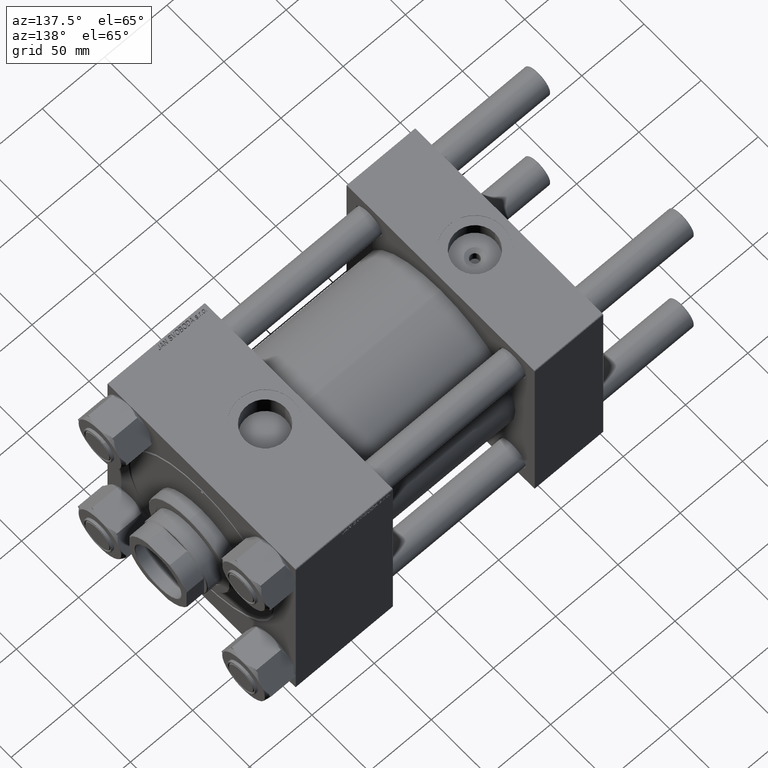
[diagram: clean part render]
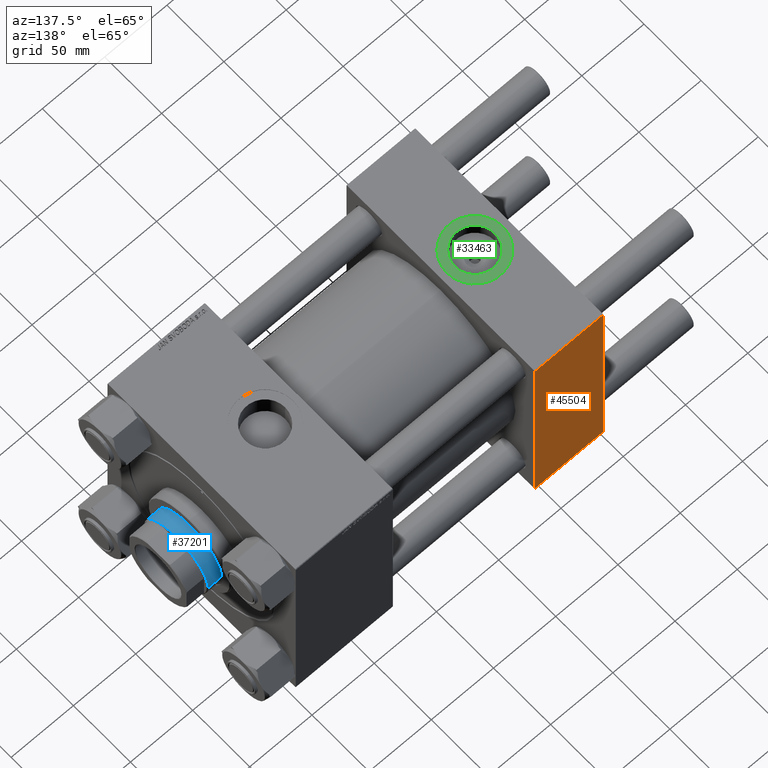
[diagram: same view with three faces highlighted in distinct colors, each labeled with its STEP entity id]
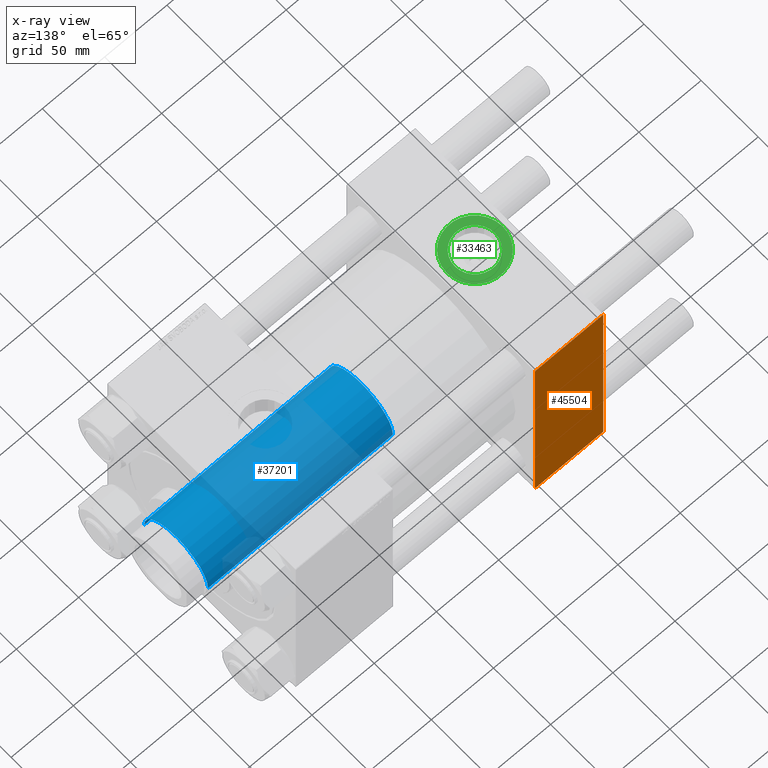
[diagram: x-ray of the same camera — body ghosted, the three highlighted faces saturated]
A machine part, auxiliary view with three faces highlighted in distinct colors.
The next image is the same camera in x-ray (body ghosted, the three faces saturated) — at least one of them is partly hidden behind the body in this view.
Their STEP definitions:

[orange] entity #45504 — the highlighted planar face has unit normal (0, 1, 0).
#919 = DIRECTION ( 'NONE',  ( -1.000000000000000000, 0.000000000000000000, 0.000000000000000000 ) ) ;
#1524 = LINE ( 'NONE', #20916, #19564 ) ;
#3460 = VERTEX_POINT ( 'NONE', #33039 ) ;
#4914 = VERTEX_POINT ( 'NONE', #8905 ) ;
#8905 = CARTESIAN_POINT ( 'NONE',  ( 0.000000000000000000, 82.50000000000002842, -82.00000000000000000 ) ) ;
#10873 = FACE_OUTER_BOUND ( 'NONE', #44082, .T. ) ;
#11813 = EDGE_CURVE ( 'NONE', #39329, #4914, #1524, .T. ) ;
#12551 = CARTESIAN_POINT ( 'NONE',  ( 55.00000000000000000, 82.50000000000002842, 82.50000000000002842 ) ) ;
#14191 = DIRECTION ( 'NONE',  ( 0.000000000000000000, -0.000000000000000000, 1.000000000000000000 ) ) ;
#14487 = AXIS2_PLACEMENT_3D ( 'NONE', #41516, #22103, #14191 ) ;
#17239 = VECTOR ( 'NONE', #43684, 1000.000000000000000 ) ;
#18789 = EDGE_CURVE ( 'NONE', #3460, #4914, #43049, .T. ) ;
#19564 = VECTOR ( 'NONE', #36496, 1000.000000000000000 ) ;
#19576 = CARTESIAN_POINT ( 'NONE',  ( 55.00000000000000000, 82.50000000000002842, -82.00000000000000000 ) ) ;
#20344 = EDGE_CURVE ( 'NONE', #33209, #3460, #31953, .T. ) ;
#20357 = LINE ( 'NONE', #29002, #32942 ) ;
#20916 = CARTESIAN_POINT ( 'NONE',  ( 0.000000000000000000, 82.50000000000002842, 82.50000000000002842 ) ) ;
#22103 = DIRECTION ( 'NONE',  ( -0.000000000000000000, 1.000000000000000000, 0.000000000000000000 ) ) ;
#24531 = VECTOR ( 'NONE', #919, 1000.000000000000000 ) ;
#29002 = CARTESIAN_POINT ( 'NONE',  ( 55.00000000000000000, 82.50000000000002842, 82.00000000000005684 ) ) ;
#30726 = ORIENTED_EDGE ( 'NONE', *, *, #35850, .T. ) ;
#31953 = LINE ( 'NONE', #12551, #17239 ) ;
#32942 = VECTOR ( 'NONE', #39764, 1000.000000000000000 ) ;
#33039 = CARTESIAN_POINT ( 'NONE',  ( 55.00000000000000000, 82.50000000000002842, -82.00000000000000000 ) ) ;
#33209 = VERTEX_POINT ( 'NONE', #39107 ) ;
#34816 = CARTESIAN_POINT ( 'NONE',  ( 0.000000000000000000, 82.50000000000002842, 82.00000000000005684 ) ) ;
#34913 = ORIENTED_EDGE ( 'NONE', *, *, #18789, .T. ) ;
#35850 = EDGE_CURVE ( 'NONE', #39329, #33209, #20357, .T. ) ;
#36496 = DIRECTION ( 'NONE',  ( 0.000000000000000000, 0.000000000000000000, -1.000000000000000000 ) ) ;
#39107 = CARTESIAN_POINT ( 'NONE',  ( 55.00000000000000000, 82.50000000000002842, 82.00000000000005684 ) ) ;
#39329 = VERTEX_POINT ( 'NONE', #34816 ) ;
#39764 = DIRECTION ( 'NONE',  ( 1.000000000000000000, 0.000000000000000000, 0.000000000000000000 ) ) ;
#41516 = CARTESIAN_POINT ( 'NONE',  ( 55.00000000000000000, 82.50000000000002842, 82.50000000000002842 ) ) ;
#43049 = LINE ( 'NONE', #19576, #24531 ) ;
#43684 = DIRECTION ( 'NONE',  ( 0.000000000000000000, 0.000000000000000000, -1.000000000000000000 ) ) ;
#44082 = EDGE_LOOP ( 'NONE', ( #48033, #34913, #48000, #30726 ) ) ;
#45073 = PLANE ( 'NONE',  #14487 ) ;
#45504 = ADVANCED_FACE ( 'NONE', ( #10873 ), #45073, .T. ) ;
#48000 = ORIENTED_EDGE ( 'NONE', *, *, #11813, .F. ) ;
#48033 = ORIENTED_EDGE ( 'NONE', *, *, #20344, .T. ) ;

[blue] entity #37201 — the highlighted cylindrical surface (partial cylindrical patch) has radius 28 mm, axis along (-1, 0, 0).
#3674 = EDGE_CURVE ( 'NONE', #40398, #17920, #42106, .T. ) ;
#3919 = VECTOR ( 'NONE', #5004, 1000.000000000000000 ) ;
#4075 = CARTESIAN_POINT ( 'NONE',  ( -28.00000000000000000, 0.000000000000000000, 64.00000000000000000 ) ) ;
#4113 = FACE_OUTER_BOUND ( 'NONE', #19691, .T. ) ;
#5004 = DIRECTION ( 'NONE',  ( -0.000000000000000000, -0.000000000000000000, -1.000000000000000000 ) ) ;
#6268 = VERTEX_POINT ( 'NONE', #30967 ) ;
#6728 = EDGE_CURVE ( 'NONE', #45009, #40398, #46863, .T. ) ;
#7498 = DIRECTION ( 'NONE',  ( 0.000000000000000000, 0.000000000000000000, 1.000000000000000000 ) ) ;
#7822 = CARTESIAN_POINT ( 'NONE',  ( -28.00000000000000000, 0.000000000000000000, 213.0000000000000000 ) ) ;
#7823 = EDGE_CURVE ( 'NONE', #6268, #17920, #44792, .T. ) ;
#8734 = ORIENTED_EDGE ( 'NONE', *, *, #6728, .T. ) ;
#9306 = DIRECTION ( 'NONE',  ( 1.000000000000000000, 0.000000000000000000, 0.000000000000000000 ) ) ;
#9556 = CARTESIAN_POINT ( 'NONE',  ( 0.000000000000000000, 0.000000000000000000, 212.5000000000000000 ) ) ;
#10787 = ORIENTED_EDGE ( 'NONE', *, *, #3674, .T. ) ;
#10817 = DIRECTION ( 'NONE',  ( 1.000000000000000000, 0.000000000000000000, 0.000000000000000000 ) ) ;
#11906 = DIRECTION ( 'NONE',  ( -0.000000000000000000, -0.000000000000000000, -1.000000000000000000 ) ) ;
#12076 = CARTESIAN_POINT ( 'NONE',  ( -28.00000000000000000, 0.000000000000000000, 212.5000000000000000 ) ) ;
#14235 = AXIS2_PLACEMENT_3D ( 'NONE', #35243, #31423, #41898 ) ;
#15965 = ORIENTED_EDGE ( 'NONE', *, *, #7823, .F. ) ;
#16384 = AXIS2_PLACEMENT_3D ( 'NONE', #9556, #44288, #9306 ) ;
#17920 = VERTEX_POINT ( 'NONE', #35016 ) ;
#18565 = VECTOR ( 'NONE', #11906, 1000.000000000000000 ) ;
#18838 = EDGE_CURVE ( 'NONE', #6268, #45009, #40029, .T. ) ;
#19691 = EDGE_LOOP ( 'NONE', ( #15965, #24408, #8734, #10787 ) ) ;
#21066 = CARTESIAN_POINT ( 'NONE',  ( 28.00000000000000000, 3.429011037612589276E-15, 213.0000000000000000 ) ) ;
#24408 = ORIENTED_EDGE ( 'NONE', *, *, #18838, .T. ) ;
#30227 = CARTESIAN_POINT ( 'NONE',  ( 0.000000000000000000, 0.000000000000000000, 64.00000000000000000 ) ) ;
#30967 = CARTESIAN_POINT ( 'NONE',  ( 28.00000000000000000, 3.429011037612589276E-15, 212.5000000000000000 ) ) ;
#31423 = DIRECTION ( 'NONE',  ( -0.000000000000000000, -0.000000000000000000, -1.000000000000000000 ) ) ;
#35016 = CARTESIAN_POINT ( 'NONE',  ( 28.00000000000000000, 3.429011037612589276E-15, 64.00000000000000000 ) ) ;
#35243 = CARTESIAN_POINT ( 'NONE',  ( 0.000000000000000000, 0.000000000000000000, 213.0000000000000000 ) ) ;
#37201 = ADVANCED_FACE ( 'NONE', ( #4113 ), #39091, .T. ) ;
#39091 = CYLINDRICAL_SURFACE ( 'NONE', #14235, 28.00000000000000000 ) ;
#40029 = CIRCLE ( 'NONE', #16384, 28.00000000000000000 ) ;
#40398 = VERTEX_POINT ( 'NONE', #4075 ) ;
#41898 = DIRECTION ( 'NONE',  ( -1.000000000000000000, 0.000000000000000000, 0.000000000000000000 ) ) ;
#42106 = CIRCLE ( 'NONE', #50245, 28.00000000000000000 ) ;
#44288 = DIRECTION ( 'NONE',  ( 0.000000000000000000, 0.000000000000000000, -1.000000000000000000 ) ) ;
#44792 = LINE ( 'NONE', #21066, #3919 ) ;
#45009 = VERTEX_POINT ( 'NONE', #12076 ) ;
#46863 = LINE ( 'NONE', #7822, #18565 ) ;
#50245 = AXIS2_PLACEMENT_3D ( 'NONE', #30227, #7498, #10817 ) ;

[green] entity #33463 — the highlighted planar face has unit normal (0, 0, 1).
#5850 = CIRCLE ( 'NONE', #44165, 22.50000000000000355 ) ;
#6251 = DIRECTION ( 'NONE',  ( 1.000000000000000000, 0.000000000000000000, 0.000000000000000000 ) ) ;
#6729 = VERTEX_POINT ( 'NONE', #23388 ) ;
#9023 = EDGE_CURVE ( 'NONE', #12689, #10284, #22676, .T. ) ;
#10127 = CARTESIAN_POINT ( 'NONE',  ( 50.00000000000000000, -8.673617379884037050E-15, 82.30000000000001137 ) ) ;
#10165 = EDGE_LOOP ( 'NONE', ( #37045, #27593 ) ) ;
#10284 = VERTEX_POINT ( 'NONE', #25665 ) ;
#10957 = CARTESIAN_POINT ( 'NONE',  ( 27.50000000000000000, -8.673617379884037050E-15, 82.30000000000001137 ) ) ;
#11719 = PLANE ( 'NONE',  #42656 ) ;
#12689 = VERTEX_POINT ( 'NONE', #31869 ) ;
#14674 = DIRECTION ( 'NONE',  ( 0.000000000000000000, 0.000000000000000000, 1.000000000000000000 ) ) ;
#15597 = DIRECTION ( 'NONE',  ( 1.000000000000000000, 0.000000000000000000, 0.000000000000000000 ) ) ;
#16433 = DIRECTION ( 'NONE',  ( 1.000000000000000000, 0.000000000000000000, 0.000000000000000000 ) ) ;
#17473 = DIRECTION ( 'NONE',  ( 1.000000000000000000, 0.000000000000000000, 0.000000000000000000 ) ) ;
#18670 = EDGE_LOOP ( 'NONE', ( #47231, #30661 ) ) ;
#20983 = CIRCLE ( 'NONE', #49475, 22.50000000000000355 ) ;
#21357 = EDGE_CURVE ( 'NONE', #6729, #32919, #5850, .T. ) ;
#22439 = FACE_OUTER_BOUND ( 'NONE', #18670, .T. ) ;
#22479 = DIRECTION ( 'NONE',  ( 0.000000000000000000, 0.000000000000000000, 1.000000000000000000 ) ) ;
#22676 = CIRCLE ( 'NONE', #31660, 16.12000000000000455 ) ;
#23388 = CARTESIAN_POINT ( 'NONE',  ( 4.999999999999993783, -5.918162081802491483E-15, 82.30000000000001137 ) ) ;
#24182 = EDGE_CURVE ( 'NONE', #10284, #12689, #26346, .T. ) ;
#24874 = CARTESIAN_POINT ( 'NONE',  ( 27.50000000000000000, -8.673617379884037050E-15, 82.30000000000001137 ) ) ;
#25665 = CARTESIAN_POINT ( 'NONE',  ( 11.37999999999999012, -6.699486739658503022E-15, 82.30000000000001137 ) ) ;
#26315 = CARTESIAN_POINT ( 'NONE',  ( 27.50000000000000000, -8.673617379884037050E-15, 82.30000000000001137 ) ) ;
#26346 = CIRCLE ( 'NONE', #33656, 16.12000000000000455 ) ;
#26424 = CARTESIAN_POINT ( 'NONE',  ( 27.50000000000000000, -8.673617379884037050E-15, 82.30000000000001137 ) ) ;
#27593 = ORIENTED_EDGE ( 'NONE', *, *, #24182, .F. ) ;
#27671 = CARTESIAN_POINT ( 'NONE',  ( 27.50000000000000000, -8.673617379884037050E-15, 82.30000000000001137 ) ) ;
#30661 = ORIENTED_EDGE ( 'NONE', *, *, #21357, .T. ) ;
#30874 = DIRECTION ( 'NONE',  ( 0.000000000000000000, 0.000000000000000000, 1.000000000000000000 ) ) ;
#31122 = DIRECTION ( 'NONE',  ( 1.000000000000000000, 0.000000000000000000, -0.000000000000000000 ) ) ;
#31660 = AXIS2_PLACEMENT_3D ( 'NONE', #26424, #14674, #6251 ) ;
#31869 = CARTESIAN_POINT ( 'NONE',  ( 43.62000000000000455, -8.673617379884037050E-15, 82.30000000000001137 ) ) ;
#32919 = VERTEX_POINT ( 'NONE', #10127 ) ;
#33463 = ADVANCED_FACE ( 'NONE', ( #35201, #22439 ), #11719, .T. ) ;
#33656 = AXIS2_PLACEMENT_3D ( 'NONE', #24874, #47835, #17473 ) ;
#35201 = FACE_BOUND ( 'NONE', #10165, .T. ) ;
#37045 = ORIENTED_EDGE ( 'NONE', *, *, #9023, .F. ) ;
#42656 = AXIS2_PLACEMENT_3D ( 'NONE', #10957, #30874, #31122 ) ;
#44165 = AXIS2_PLACEMENT_3D ( 'NONE', #27671, #47047, #16433 ) ;
#47047 = DIRECTION ( 'NONE',  ( 0.000000000000000000, 0.000000000000000000, 1.000000000000000000 ) ) ;
#47231 = ORIENTED_EDGE ( 'NONE', *, *, #47860, .T. ) ;
#47835 = DIRECTION ( 'NONE',  ( 0.000000000000000000, 0.000000000000000000, 1.000000000000000000 ) ) ;
#47860 = EDGE_CURVE ( 'NONE', #32919, #6729, #20983, .T. ) ;
#49475 = AXIS2_PLACEMENT_3D ( 'NONE', #26315, #22479, #15597 ) ;